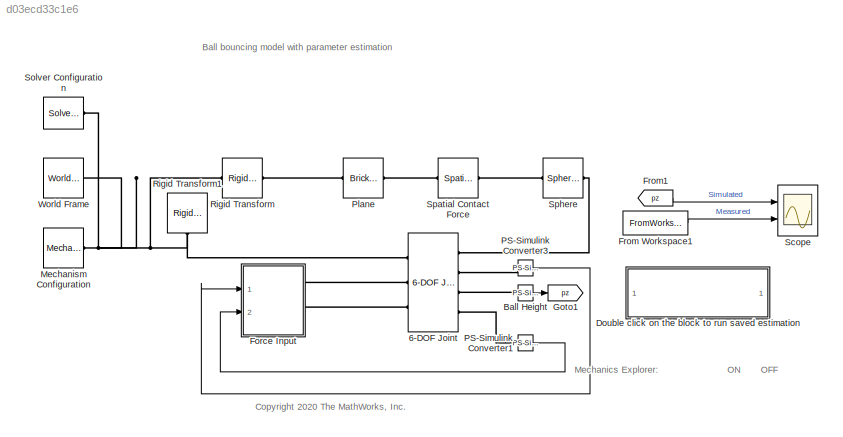
MODEL slx_d03ecd33c1e6
KIND model
CONFIG AbsTol = auto
CONFIG EnableMultiTasking = off
CONFIG FixedStep = 0.001
CONFIG MaxStep = auto
CONFIG MinStep = auto
CONFIG PreLoadFcn = d1=1;\nd2=0;\nd3=0.4319;\nk=1e4;\ntr = 1e-4;\ninterPolation\nCd = 1.2;\nA = (pi*(0.065)^2)/2;\nrho = 1.23;
CONFIG RelTol = 1e-3
CONFIG SampleTimeConstraint = Unconstrained
CONFIG Solver = VariableStepAuto
CONFIG SolverName = VariableStepAuto
CONFIG StartTime = 0.0
CONFIG StopTime = 2.455
WORKSPACE source: mxarray member
WORKSPACE ballDropParaEstimation_spesession: sldodialogs.data.SessionData (value not decoded)
BLOCK [Reference] 6-DOF Joint  REF=sm_lib/Joints/6-DOF Joint
  Ports = [0, 0, 0, 0, 0, 3, 4]
  SourceBlock = sm_lib/Joints/6-DOF Joint
  SourceProductBaseCode = MS
  SourceProductName = Simscape Multibody
  SourceType = 6-DOF Joint
BLOCK [Reference] Ball Height  REF=nesl_utility/PS-Simulink
Converter
  Ports = [0, 1, 0, 0, 0, 1]
  SourceBlock = nesl_utility/PS-Simulink\nConverter
  SourceProductBaseCode = SS
  SourceProductName = Simscape
  SourceType = PS-Simulink\nConverter
BLOCK [SubSystem] Double click on the block to run saved estimation
  OpenFcn = set_param(bdroot,'FastRestart','on');\nload ballDropParaEstimation_spesession;\nsdotool(SDOSessionData);\nset_param(bdroot,'SimMechanicsOpenEditorOnUpdate','off');
  Ports = []
  RequestExecContextInheritance = off
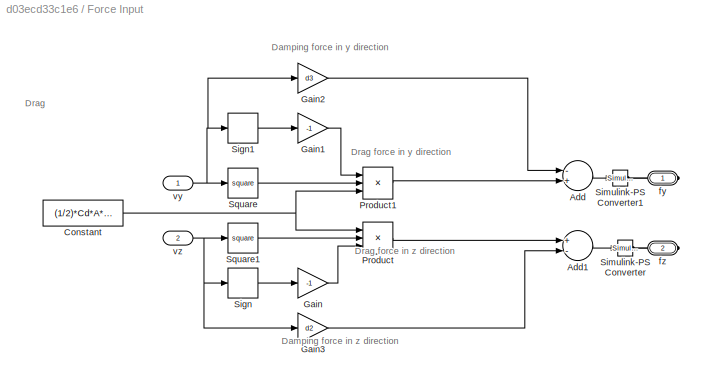
BLOCK [SubSystem] Force Input
  Ports = [2, 0, 0, 0, 0, 0, 2]
  RequestExecContextInheritance = off
BLOCK [Sum] Force Input/Add
  InputSameDT = off
  Inputs = -+
  OutDataTypeStr = Inherit: Inherit via internal rule
  Ports = [2, 1]
  SaturateOnIntegerOverflow = off
BLOCK [Sum] Force Input/Add1
  InputSameDT = off
  Inputs = +-
  OutDataTypeStr = Inherit: Inherit via internal rule
  Ports = [2, 1]
  SaturateOnIntegerOverflow = off
BLOCK [Constant] Force Input/Constant
  Value = (1/2)*Cd*A*rho
BLOCK [Gain] Force Input/Gain
  Gain = -1
  OutDataTypeStr = Inherit: Inherit via internal rule
  ParamDataTypeStr = Inherit: Inherit via internal rule
  SaturateOnIntegerOverflow = off
BLOCK [Gain] Force Input/Gain1
  Gain = -1
  OutDataTypeStr = Inherit: Inherit via internal rule
  ParamDataTypeStr = Inherit: Inherit via internal rule
  SaturateOnIntegerOverflow = off
BLOCK [Gain] Force Input/Gain2
  Gain = d3
  OutDataTypeStr = Inherit: Inherit via internal rule
  ParamDataTypeStr = Inherit: Inherit via internal rule
  SaturateOnIntegerOverflow = off
BLOCK [Gain] Force Input/Gain3
  Gain = d2
  OutDataTypeStr = Inherit: Inherit via internal rule
  ParamDataTypeStr = Inherit: Inherit via internal rule
  SaturateOnIntegerOverflow = off
BLOCK [Product] Force Input/Product
  InputSameDT = off
  Inputs = 3
  OutDataTypeStr = Inherit: Inherit via internal rule
  Ports = [3, 1]
  RndMeth = Floor
  SaturateOnIntegerOverflow = off
BLOCK [Product] Force Input/Product1
  InputSameDT = off
  Inputs = 3
  OutDataTypeStr = Inherit: Inherit via internal rule
  Ports = [3, 1]
  RndMeth = Floor
  SaturateOnIntegerOverflow = off
BLOCK [Signum] Force Input/Sign
BLOCK [Signum] Force Input/Sign1
BLOCK [Reference] Force Input/Simulink-PS Converter  REF=nesl_utility/Simulink-PS
Converter
  Ports = [1, 0, 0, 0, 0, 0, 1]
  SourceBlock = nesl_utility/Simulink-PS\nConverter
  SourceProductBaseCode = SS
  SourceProductName = Simscape
  SourceType = Simulink-PS\nConverter
BLOCK [Reference] Force Input/Simulink-PS Converter1  REF=nesl_utility/Simulink-PS
Converter
  Ports = [1, 0, 0, 0, 0, 0, 1]
  SourceBlock = nesl_utility/Simulink-PS\nConverter
  SourceProductBaseCode = SS
  SourceProductName = Simscape
  SourceType = Simulink-PS\nConverter
BLOCK [Math] Force Input/Square
  Operator = square
  Ports = [1, 1]
  SignedPower = off
BLOCK [Math] Force Input/Square1
  Operator = square
  Ports = [1, 1]
  SignedPower = off
BLOCK [PMIOPort] Force Input/fy
  Side = Right
BLOCK [PMIOPort] Force Input/fz 
  Port = 2
  Side = Right
BLOCK [Inport] Force Input/vy
  IconDisplay = Port number
BLOCK [Inport] Force Input/vz
  IconDisplay = Port number
  Port = 2
BLOCK [FromWorkspace] From Workspace1
  SampleTime = 0.001
  VariableName = [timeint' yint']
  ZeroCross = on
BLOCK [From] From1
  GotoTag = pz
BLOCK [Goto] Goto1
  GotoTag = pz
BLOCK [Reference] Mechanism Configuration  REF=sm_lib/Utilities/Mechanism
Configuration
  Ports = [0, 0, 0, 0, 0, 0, 1]
  SourceBlock = sm_lib/Utilities/Mechanism\nConfiguration
  SourceProductBaseCode = MS
  SourceProductName = Simscape Multibody
  SourceType = Mechanism\nConfiguration
BLOCK [Reference] PS-Simulink Converter1  REF=nesl_utility/PS-Simulink
Converter
  Ports = [0, 1, 0, 0, 0, 1]
  SourceBlock = nesl_utility/PS-Simulink\nConverter
  SourceProductBaseCode = SS
  SourceProductName = Simscape
  SourceType = PS-Simulink\nConverter
BLOCK [Reference] PS-Simulink Converter3  REF=nesl_utility/PS-Simulink
Converter
  Ports = [0, 1, 0, 0, 0, 1]
  SourceBlock = nesl_utility/PS-Simulink\nConverter
  SourceProductBaseCode = SS
  SourceProductName = Simscape
  SourceType = PS-Simulink\nConverter
BLOCK [Reference] Plane  REF=sm_lib/Body Elements/Brick Solid
  Ports = [0, 0, 0, 0, 0, 1, 1]
  SourceBlock = sm_lib/Body Elements/Brick Solid
  SourceProductBaseCode = MS
  SourceProductName = Simscape Multibody
  SourceType = Brick Solid
BLOCK [Reference] Rigid Transform  REF=sm_lib/Frames and
Transforms/Rigid
Transform
  Ports = [0, 0, 0, 0, 0, 1, 1]
  SourceBlock = sm_lib/Frames and\nTransforms/Rigid\nTransform
  SourceProductBaseCode = MS
  SourceProductName = Simscape Multibody
  SourceType = Rigid\nTransform
BLOCK [Reference] Rigid Transform1  REF=sm_lib/Frames and
Transforms/Rigid
Transform
  Ports = [0, 0, 0, 0, 0, 1, 1]
  SourceBlock = sm_lib/Frames and\nTransforms/Rigid\nTransform
  SourceProductBaseCode = MS
  SourceProductName = Simscape Multibody
  SourceType = Rigid\nTransform
BLOCK [Scope] Scope
  Floating = off
  NumInputPorts = 2
  Ports = [2]
  ScopeSpecificationString = Simulink.scopes.TimeScopeBlockCfg('CurrentConfiguration', extmgr.ConfigurationSet(extmgr.Configuration('Core','General UI',true),extmgr.Configuration('Core','Source UI',true),extmgr.Configuration('Sources','WiredSimulink',true),extmgr.Configuration('Visuals','Time Domain',true,'SerializedDisplays',{struct('MinYLimReal','-0.05853','MaxYLimReal','0.48064','YLabelReal','','MinYLimMag','0.00000','MaxY...<+1499ch>
BLOCK [Reference] Solver Configuration  REF=nesl_utility/Solver
Configuration
  Ports = [0, 0, 0, 0, 0, 0, 1]
  SourceBlock = nesl_utility/Solver\nConfiguration
  SourceProductBaseCode = SS
  SourceProductName = Simscape
  SourceType = Solver\nConfiguration
BLOCK [Reference] Spatial Contact Force  REF=sm_lib/Forces and
Torques/Spatial
Contact Force
  Ports = [0, 0, 0, 0, 0, 1, 1]
  SourceBlock = sm_lib/Forces and\nTorques/Spatial\nContact Force
  SourceProductBaseCode = MS
  SourceProductName = Simscape Multibody
  SourceType = Spatial\nContact Force
BLOCK [Reference] Sphere  REF=sm_lib/Body Elements/Spherical Solid
  Ports = [0, 0, 0, 0, 0, 1, 1]
  SourceBlock = sm_lib/Body Elements/Spherical Solid
  SourceProductBaseCode = MS
  SourceProductName = Simscape Multibody
  SourceType = Spherical Solid
BLOCK [Reference] World Frame  REF=sm_lib/Frames and
Transforms/World Frame
  Ports = [0, 0, 0, 0, 0, 0, 1]
  SourceBlock = sm_lib/Frames and\nTransforms/World Frame
  SourceProductBaseCode = MS
  SourceProductName = Simscape Multibody
  SourceType = World Frame
ANNOTATION (root): ON
ANNOTATION (root): Ball bouncing model with parameter estimation
ANNOTATION (root): OFF
ANNOTATION (root): <copyright redacted>
ANNOTATION (root): Mechanics Explorer:
ANNOTATION Force Input: Damping force in z direction
ANNOTATION Force Input: Damping force in y direction
ANNOTATION Force Input: Drag force in y direction
ANNOTATION Force Input: Drag force in z direction
ANNOTATION Force Input: Drag
LINE Ball Height:1 -> Goto1:1
LINE Force Input/Add1:1 -> Force Input/Simulink-PS Converter:1
LINE Force Input/Add:1 -> Force Input/Simulink-PS Converter1:1
NET Force Input/Constant:1 -> Force Input/Product1:3, Force Input/Product:1
LINE Force Input/Gain1:1 -> Force Input/Product1:1
LINE Force Input/Gain2:1 -> Force Input/Add:1
LINE Force Input/Gain3:1 -> Force Input/Add1:2
LINE Force Input/Gain:1 -> Force Input/Product:3
LINE Force Input/Product1:1 -> Force Input/Add:2
LINE Force Input/Product:1 -> Force Input/Add1:1
LINE Force Input/Sign1:1 -> Force Input/Gain1:1
LINE Force Input/Sign:1 -> Force Input/Gain:1
LINE Force Input/Square1:1 -> Force Input/Product:2
LINE Force Input/Square:1 -> Force Input/Product1:2
NET Force Input/vy:1 -> Force Input/Gain2:1, Force Input/Sign1:1, Force Input/Square:1
NET Force Input/vz:1 -> Force Input/Gain3:1, Force Input/Sign:1, Force Input/Square1:1
LINE From Workspace1:1 -> Scope:2
LINE From1:1 -> Scope:1
LINE PS-Simulink Converter1:1 -> Force Input:2
LINE PS-Simulink Converter3:1 -> Force Input:1
PLINE 6-DOF Joint:LConn1 -- Rigid Transform1:RConn1
PLINE 6-DOF Joint:LConn2 -- Force Input:RConn1
PLINE 6-DOF Joint:LConn3 -- Force Input:RConn2
PLINE 6-DOF Joint:RConn1 -- Sphere:RConn1
PLINE 6-DOF Joint:RConn2 -- PS-Simulink Converter3:LConn1
PLINE 6-DOF Joint:RConn3 -- Ball Height:LConn1
PLINE 6-DOF Joint:RConn4 -- PS-Simulink Converter1:LConn1
PLINE Force Input/Simulink-PS Converter1:RConn1 -- Force Input/fy:RConn1
PLINE Force Input/Simulink-PS Converter:RConn1 -- Force Input/fz :RConn1
PNET net1: Mechanism Configuration:RConn1 -- Rigid Transform1:LConn1 -- Rigid Transform:LConn1 -- Solver Configuration:RConn1 -- World Frame:RConn1
PLINE Plane:LConn1 -- Spatial Contact Force:LConn1
PLINE Plane:RConn1 -- Rigid Transform:RConn1
PLINE Spatial Contact Force:RConn1 -- Sphere:LConn1
note: NET lines group one-source signal fan-out (src -> all destinations, sorted); 1:1 wires keep LINE; PNET lines group multi-terminal physical nets as a canonical sorted terminal list (undirected conserving connections); 2-terminal nets keep the pairwise PLINE form
